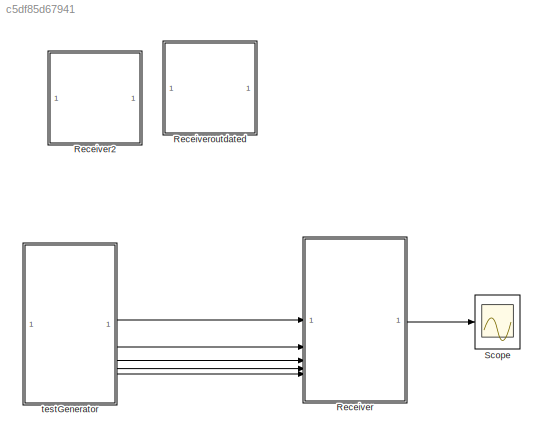
MODEL slx_c5df85d67941
KIND model
CONFIG AbsTol = auto
CONFIG EnableMultiTasking = off
CONFIG FixedStep = auto
CONFIG MaxStep = 0.1
CONFIG MinStep = 0.1
CONFIG RelTol = 1e-3
CONFIG SampleTimeConstraint = Unconstrained
CONFIG SolverName = VariableStepAuto
CONFIG StartTime = 0.0
CONFIG StopTime = 10
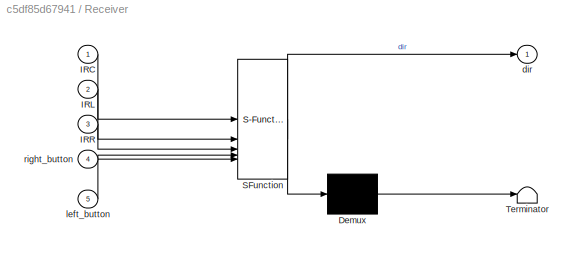
BLOCK [SubSystem] Receiver
  ErrorFcn = Stateflow.Translate.translate
  PermitHierarchicalResolution = ExplicitOnly
  PortSchema = {"entries":[{"content":{"sides":[{"content":{"connectorIds":["In1","In2","In3","In5","In4"]},"type":"ConnectorPlacement.EquallySpacedRectSide","uuid":"a7c67967-75fc-40e8-bf52-5a8169edc620"},{"content":{"connectorIds":["Out1"],"side":"RIGHT"},"type":"ConnectorPlacement.EquallySpacedRectSide","uuid":"0dd475c1-ea75-459f-a8c7-6ac5ab631be3"},{"content":{"side":"TOP"},"type":"ConnectorPlacement.EquallyS...<+246ch>
  SFBlockType = Chart
  TreatAsAtomicUnit = on
BLOCK [Demux] Receiver/ Demux 
  Outputs = 1
BLOCK [S-Function] Receiver/ SFunction 
  EnableBusSupport = on
  FunctionName = sf_sfun
  PortCounts = [5 2]
  SFcnIsStateOwnerBlock = off
  SFunctionDeploymentMode = off
  Tag = Stateflow S-Function 4
BLOCK [Terminator] Receiver/ Terminator 
BLOCK [Inport] Receiver/IRC
BLOCK [Inport] Receiver/IRL
  Port = 2
BLOCK [Inport] Receiver/IRR
  Port = 3
BLOCK [Outport] Receiver/dir
BLOCK [Inport] Receiver/left_button
  Port = 5
BLOCK [Inport] Receiver/right_button
  Port = 4
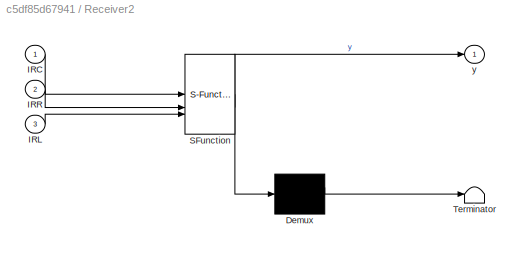
BLOCK [SubSystem] Receiver2
  Commented = on
  ErrorFcn = Stateflow.Translate.translate
  PermitHierarchicalResolution = ExplicitOnly
  PortSchema = {"entries":[{"content":{"sides":[{"content":{"connectorIds":["In3","In1","In2"]},"type":"ConnectorPlacement.EquallySpacedRectSide","uuid":"3e103536-5285-48a0-81ad-92eb0938af06"},{"content":{"connectorIds":["Out1"],"side":"RIGHT"},"type":"ConnectorPlacement.EquallySpacedRectSide","uuid":"b02ab8c7-8171-4867-a732-6e1e7f56a02e"},{"content":{"side":"TOP"},"type":"ConnectorPlacement.EquallySpacedRectSid...<+234ch>
  SFBlockType = Chart
  TreatAsAtomicUnit = on
BLOCK [Demux] Receiver2/ Demux 
  Outputs = 1
BLOCK [S-Function] Receiver2/ SFunction 
  EnableBusSupport = on
  FunctionName = sf_sfun
  PortCounts = [3 2]
  SFcnIsStateOwnerBlock = off
  SFunctionDeploymentMode = off
  Tag = Stateflow S-Function 2
BLOCK [Terminator] Receiver2/ Terminator 
BLOCK [Inport] Receiver2/IRC
BLOCK [Inport] Receiver2/IRL
  Port = 3
BLOCK [Inport] Receiver2/IRR
  Port = 2
BLOCK [Outport] Receiver2/y
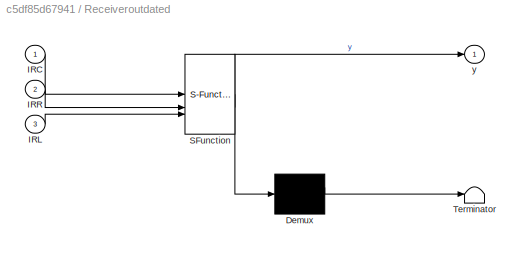
BLOCK [SubSystem] Receiveroutdated
  Commented = on
  ErrorFcn = Stateflow.Translate.translate
  PermitHierarchicalResolution = ExplicitOnly
  PortSchema = {"entries":[{"content":{"sides":[{"content":{"connectorIds":["In3","In1","In2"]},"type":"ConnectorPlacement.EquallySpacedRectSide","uuid":"3e103536-5285-48a0-81ad-92eb0938af06"},{"content":{"connectorIds":["Out1"],"side":"RIGHT"},"type":"ConnectorPlacement.EquallySpacedRectSide","uuid":"b02ab8c7-8171-4867-a732-6e1e7f56a02e"},{"content":{"side":"TOP"},"type":"ConnectorPlacement.EquallySpacedRectSid...<+234ch>
  SFBlockType = Chart
  TreatAsAtomicUnit = on
BLOCK [Demux] Receiveroutdated/ Demux 
  Outputs = 1
BLOCK [S-Function] Receiveroutdated/ SFunction 
  EnableBusSupport = on
  FunctionName = sf_sfun
  PortCounts = [3 2]
  SFcnIsStateOwnerBlock = off
  SFunctionDeploymentMode = off
  Tag = Stateflow S-Function 1
BLOCK [Terminator] Receiveroutdated/ Terminator 
BLOCK [Inport] Receiveroutdated/IRC
BLOCK [Inport] Receiveroutdated/IRL
  Port = 3
BLOCK [Inport] Receiveroutdated/IRR
  Port = 2
BLOCK [Outport] Receiveroutdated/y
BLOCK [Scope] Scope
  Floating = off
  NumInputPorts = 1
  ScopeSpecificationString = Simulink.scopes.TimeScopeBlockCfg('CurrentConfiguration', extmgr.ConfigurationSet(extmgr.Configuration('Core','General UI',true),extmgr.Configuration('Core','Source UI',true),extmgr.Configuration('Sources','WiredSimulink',true),extmgr.Configuration('Visuals','Time Domain',true,'SerializedDisplays',{struct('MinYLimReal','-3.75','MaxYLimReal','3.75','YLabelReal','','MinYLimMag','0.00000','MaxYLimMag...<+1473ch>
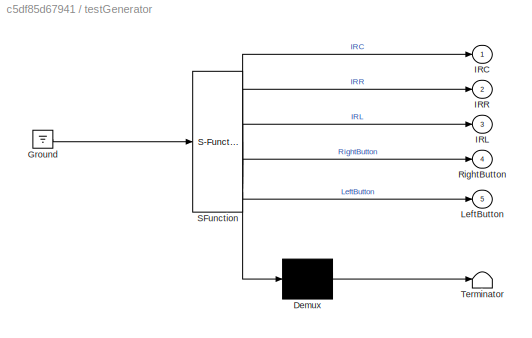
BLOCK [SubSystem] testGenerator
  ErrorFcn = Stateflow.Translate.translate
  PermitHierarchicalResolution = ExplicitOnly
  PortSchema = {"entries":[{"content":{"sides":[{"content":{},"type":"ConnectorPlacement.EquallySpacedRectSide","uuid":"6471699b-62f9-4f91-aa69-9d89f0e09012"},{"content":{"connectorIds":["Out1","Out3","Out2","Out5","Out4"],"side":"RIGHT"},"type":"ConnectorPlacement.EquallySpacedRectSide","uuid":"9e325bec-2460-4b35-8ca1-34a3b99ec345"},{"content":{"side":"TOP"},"type":"ConnectorPlacement.EquallySpacedRectSide","uu...<+228ch>
  SFBlockType = Chart
  TreatAsAtomicUnit = on
BLOCK [Demux] testGenerator/ Demux 
  Outputs = 1
BLOCK [Ground] testGenerator/ Ground 
BLOCK [S-Function] testGenerator/ SFunction 
  EnableBusSupport = on
  FunctionName = sf_sfun
  PortCounts = [1 6]
  SFcnIsStateOwnerBlock = off
  SFunctionDeploymentMode = off
  Tag = Stateflow S-Function 3
BLOCK [Terminator] testGenerator/ Terminator 
BLOCK [Outport] testGenerator/IRC
BLOCK [Outport] testGenerator/IRL
  Port = 3
BLOCK [Outport] testGenerator/IRR
  Port = 2
BLOCK [Outport] testGenerator/LeftButton
  Port = 5
BLOCK [Outport] testGenerator/RightButton
  Port = 4
LINE Receiver:1 -> Scope:1
LINE testGenerator:1 -> Receiver:1
LINE testGenerator:2 -> Receiver:3
LINE testGenerator:3 -> Receiver:2
LINE testGenerator:4 -> Receiver:4
LINE testGenerator:5 -> Receiver:5
CHART Receiveroutdated states=6 transitions=32
  STATE_LABEL 'Right\ny=-2;'
  STATE_LABEL 'Midright\ny=-1;'
  STATE_LABEL 'idle\ny="idle";'
  STATE_LABEL 'Mid\ny=0;'
  STATE_LABEL 'Midleft\ny=1;'
  STATE_LABEL 'Left\ny=2;'
CHART Receiver2 states=4 transitions=5
  STATE_LABEL 'MoveLeft'
  STATE_LABEL 'MoveRight'
  STATE_LABEL 'MoveCenter'
  STATE_LABEL 'Start\nIRL = 800\nIRC =\n'
CHART testGenerator states=10 transitions=20
  STATE_LABEL 'Setup\ncount=0\nIRC = pres\nIRL = barpres\nIRR = barpres\nLeftButton = 0\nRightButton = 0'
  STATE_LABEL 'centerData\nIRC = pres\nIRL = barpres\nIRR = barpres\nLeftButton = 0\nRightButton = 0'
  STATE_LABEL 'MidRightData\nIRC = parpres\nIRL = barpres\nIRR = pres\nLeftButton = 0\nRightButton = 0'
  STATE_LABEL 'RightData\nIRC = barpres\nIRL = notpres\nIRR = pres\nLeftButton = 0\nRightButton = 0'
  STATE_LABEL 'LoseDataNoTrans\nIRC = notpres\nIRL = notpres\nIRR = notpres\nLeftButton = 0\nRightButton = 0'
  STATE_LABEL 'SwitchDir\nIRC = notpres\nIRL = notpres\nIRR = notpres\nLeftButton = 0\nRightButton = 0'
  STATE_LABEL 'MidLeftData\nIRC = parpres\nIRL = pres\nIRR = barpres\nLeftButton = 0\nRightButton = 0'
  STATE_LABEL 'LeftData\nIRC = barpres\nIRL = pres\nIRR = notpres\nLeftButton = 0\nRightButton = 0'
  STATE_LABEL 'ButtonPress\nIRC = notpres\nIRL = notpres\nIRR = notpres\nLeftButton = 1\nRightButton = 0'
  STATE_LABEL 'SwitchMode\nIRC = notpres\nIRL = notpres\nIRR = notpres\nLeftButton = 0\nRightButton = 0'
CHART Receiver states=15 transitions=29
  STATE_LABEL 'InitializingMode'
  STATE_LABEL 'TrackingMode'
  STATE_LABEL 'Unknown\ndir=prev_state;'
  STATE_LABEL 'Stop\ndir=0;'
  STATE_LABEL 'RightTrack\ndir=-2;'
  STATE_LABEL 'MidrightTrack\ndir=-1;'
  STATE_LABEL 'comp'
  STATE_LABEL 'MidTrack\ndir=0;'
  STATE_LABEL 'MidleftTrack\ndir=1;'
  STATE_LABEL 'LeftTrack\ndir=2;'
  STATE_LABEL 'Error \n'
  STATE_LABEL '[IRL>AbsTh && IRC>AbsTh && IRR>AbsTh]{no_start_bit = no_start_bit + 1}'
  STATE_LABEL '[no_start_bit<16]'
  STATE_LABEL '{prev_state=0}'
  STATE_LABEL '[left_button || right_button]'
  STATE_LABEL '[IRR<IRC && IRR < IRL ]{no_start_bit=0}'
  STATE_LABEL '{prev_state = -2}'
  STATE_LABEL '[abs(IRC-IRR) < SmTh && IRR<IRC && IRR < IRL]{no_start_bit=0}'
  STATE_LABEL '{prev_state = -1}'
  STATE_LABEL '[IRC<IRL && IRC < IRR]{no_start_bit=0}'
  STATE_LABEL '{prev_state = 0}'
  STATE_LABEL '[abs(IRC-IRL) < SmTh && IRL<IRC && IRL < IRR]{no_start_bit=0}'
  STATE_LABEL '{prev_state = 1}'
  STATE_LABEL '{no_start_bit=0}'
  STATE_LABEL '{prev_state = 2}'
  STATE_LABEL '[IRL<IRC && IRL < IRR]{no_start_bit=0}'
  STATE_LABEL 'Unknown\ndir=prev_state;'
  STATE_LABEL 'Stop\ndir=0;'
  STATE_LABEL 'RightTrack\ndir=-2;'
  STATE_LABEL 'MidrightTrack\ndir=-1;'
  STATE_LABEL 'comp'
  STATE_LABEL 'MidTrack\ndir=0;'
  STATE_LABEL 'MidleftTrack\ndir=1;'
  STATE_LABEL 'LeftTrack\ndir=2;'
  STATE_LABEL 'Error \n'
  STATE_LABEL 'ScanningMode'
  STATE_LABEL 'RightScan\ndir=-3;'
  STATE_LABEL 'startScan'
  STATE_LABEL 'LeftScan\ndir=3;'
  STATE_LABEL '[prev_state==-2 || prev_state==-1 ]'
CHART  states=0 transitions=0
CHART  states=0 transitions=0
CHART  states=0 transitions=0
CHART  states=0 transitions=0
